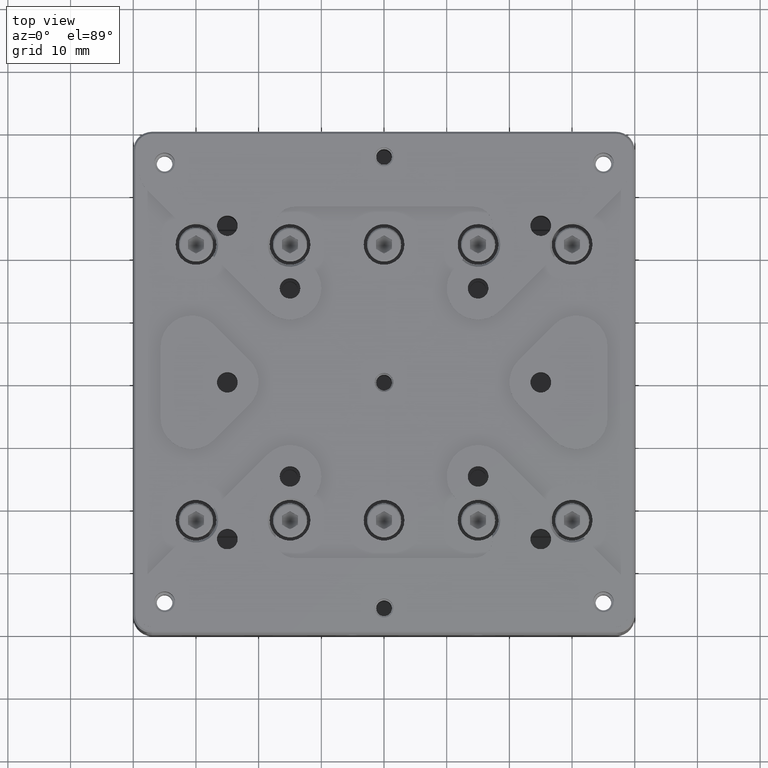
[diagram: clean part render]
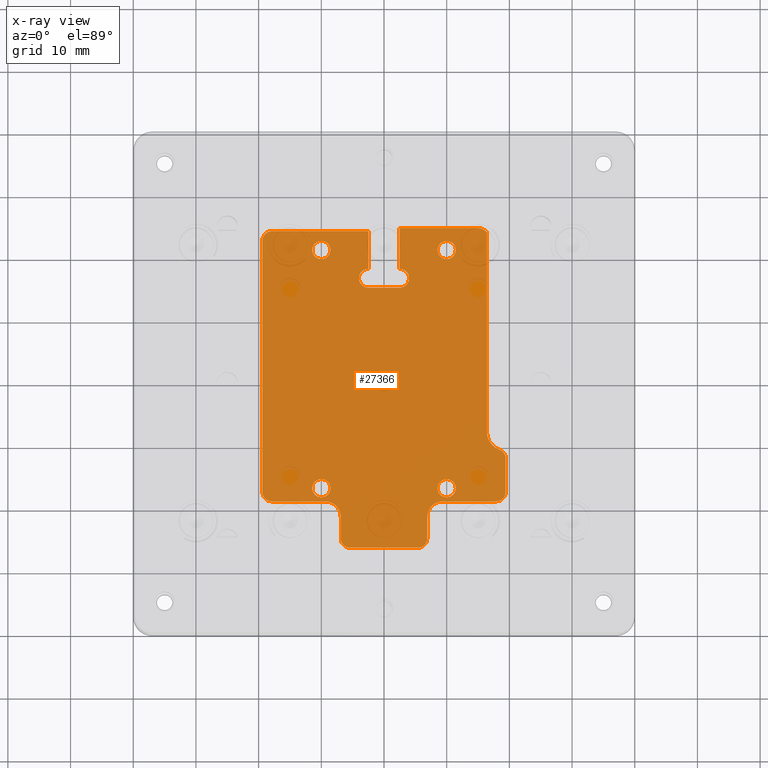
[diagram: x-ray — body ghosted, one internal face saturated and labeled with its STEP entity id]
A machine part, top view, then the same camera in x-ray: the body is ghosted and one INTERNAL B-rep face — a face not visible from any outside direction — is saturated and labeled: STEP entity #27366.
In plain terms, the highlighted planar face has unit normal (0, 0, -1).
Its self-contained STEP definition (entity closure, byte-faithful):
#16 = CARTESIAN_POINT ( 'NONE',  ( -5.400000000000000355, -25.99999999926725280, -8.800000000007910828 ) ) ;
#137 = CIRCLE ( 'NONE', #17075, 1.449999999999999956 ) ;
#143 = ORIENTED_EDGE ( 'NONE', *, *, #4911, .F. ) ;
#257 = VERTEX_POINT ( 'NONE', #14476 ) ;
#405 = CARTESIAN_POINT ( 'NONE',  ( 19.39999999934239838, -17.09999999325500042, -8.799999998785779098 ) ) ;
#794 = VECTOR ( 'NONE', #23783, 1000.000000000000000 ) ;
#882 = AXIS2_PLACEMENT_3D ( 'NONE', #8788, #3944, #26430 ) ;
#949 = FACE_BOUND ( 'NONE', #27039, .T. ) ;
#951 = ORIENTED_EDGE ( 'NONE', *, *, #2645, .T. ) ;
#1061 = VECTOR ( 'NONE', #10046, 1000.000000000000000 ) ;
#1073 = DIRECTION ( 'NONE',  ( -1.000000000000000000, 0.000000000000000000, 0.000000000000000000 ) ) ;
#1105 = VERTEX_POINT ( 'NONE', #18931 ) ;
#1131 = EDGE_CURVE ( 'NONE', #24545, #27905, #9141, .T. ) ;
#1202 = ORIENTED_EDGE ( 'NONE', *, *, #19874, .F. ) ;
#1248 = ORIENTED_EDGE ( 'NONE', *, *, #14221, .F. ) ;
#1253 = CIRCLE ( 'NONE', #10630, 1.449999999999999956 ) ;
#1341 = VERTEX_POINT ( 'NONE', #15688 ) ;
#1468 = AXIS2_PLACEMENT_3D ( 'NONE', #16223, #9461, #16671 ) ;
#1509 = VERTEX_POINT ( 'NONE', #27553 ) ;
#1607 = AXIS2_PLACEMENT_3D ( 'NONE', #23399, #21197, #1073 ) ;
#1663 = CARTESIAN_POINT ( 'NONE',  ( 0.000000000000000000, -18.59999999856999864, -8.800000000000000711 ) ) ;
#1669 = AXIS2_PLACEMENT_3D ( 'NONE', #4443, #13720, #19504 ) ;
#1740 = VERTEX_POINT ( 'NONE', #13140 ) ;
#1854 = ORIENTED_EDGE ( 'NONE', *, *, #28098, .F. ) ;
#1990 = EDGE_CURVE ( 'NONE', #1105, #8143, #25541, .T. ) ;
#2001 = DIRECTION ( 'NONE',  ( 0.000000000000000000, 0.000000000000000000, 1.000000000000000000 ) ) ;
#2112 = VERTEX_POINT ( 'NONE', #21927 ) ;
#2127 = VERTEX_POINT ( 'NONE', #5774 ) ;
#2130 = EDGE_CURVE ( 'NONE', #9591, #257, #26031, .T. ) ;
#2136 = CARTESIAN_POINT ( 'NONE',  ( 10.00000000000000000, -16.50000000000000000, -8.800000000000000711 ) ) ;
#2236 = DIRECTION ( 'NONE',  ( -1.000000000000000000, 0.000000000000000000, 0.000000000000000000 ) ) ;
#2291 = CIRCLE ( 'NONE', #23442, 3.000000000076215922 ) ;
#2514 = CARTESIAN_POINT ( 'NONE',  ( -17.89999999999999858, 23.00000000000000000, -8.799999998700519299 ) ) ;
#2552 = FACE_OUTER_BOUND ( 'NONE', #4009, .T. ) ;
#2645 = EDGE_CURVE ( 'NONE', #14348, #2112, #26730, .T. ) ;
#2782 = EDGE_CURVE ( 'NONE', #257, #9591, #26293, .T. ) ;
#2996 = ORIENTED_EDGE ( 'NONE', *, *, #20129, .F. ) ;
#3034 = EDGE_LOOP ( 'NONE', ( #6653, #23144 ) ) ;
#3944 = DIRECTION ( 'NONE',  ( 0.000000000000000000, 0.000000000000000000, 1.000000000000000000 ) ) ;
#4003 = DIRECTION ( 'NONE',  ( 1.000000000000000000, 0.000000000000000000, 0.000000000000000000 ) ) ;
#4009 = EDGE_LOOP ( 'NONE', ( #1854, #17463, #143, #11939, #19205, #16305, #17220, #18360, #7519, #12597, #23995, #16031, #8256, #8213, #14610, #10104, #2996, #1202, #13531, #22551, #9954, #14824, #1248, #26762, #10898, #951 ) ) ;
#4128 = DIRECTION ( 'NONE',  ( 0.000000000000000000, 0.000000000000000000, 1.000000000000000000 ) ) ;
#4135 = DIRECTION ( 'NONE',  ( 0.000000000000000000, -1.000000000000000000, 0.000000000000000000 ) ) ;
#4145 = DIRECTION ( 'NONE',  ( -1.000000000000000000, 0.000000000000000000, 0.000000000000000000 ) ) ;
#4416 = AXIS2_PLACEMENT_3D ( 'NONE', #26337, #4128, #28266 ) ;
#4443 = CARTESIAN_POINT ( 'NONE',  ( -5.400000000000000355, -24.50000000000000000, -8.800000000007910828 ) ) ;
#4582 = EDGE_CURVE ( 'NONE', #27315, #22946, #7027, .T. ) ;
#4611 = CARTESIAN_POINT ( 'NONE',  ( 10.00000000000000000, 21.50000000000000000, -8.800000000000000711 ) ) ;
#4622 = CARTESIAN_POINT ( 'NONE',  ( -11.44999999999999929, 21.50000000000000000, -8.800000000000000711 ) ) ;
#4910 = FACE_BOUND ( 'NONE', #13716, .T. ) ;
#4911 = EDGE_CURVE ( 'NONE', #20465, #1740, #26769, .T. ) ;
#5049 = PLANE ( 'NONE',  #12834 ) ;
#5255 = CARTESIAN_POINT ( 'NONE',  ( 0.000000000000000000, -18.59999999999999787, -8.800000000000000711 ) ) ;
#5437 = CARTESIAN_POINT ( 'NONE',  ( -17.90000000079999865, -18.59999999928500003, -8.799999999293419251 ) ) ;
#5619 = EDGE_CURVE ( 'NONE', #28741, #12495, #16815, .T. ) ;
#5774 = CARTESIAN_POINT ( 'NONE',  ( 6.899999999361999592, -24.49999999325499900, -8.799999999378679050 ) ) ;
#6018 = CARTESIAN_POINT ( 'NONE',  ( -10.00000000000000000, 21.50000000000000000, -8.800000000000000711 ) ) ;
#6027 = EDGE_CURVE ( 'NONE', #12881, #27760, #19172, .T. ) ;
#6105 = AXIS2_PLACEMENT_3D ( 'NONE', #4611, #11399, #11537 ) ;
#6141 = CARTESIAN_POINT ( 'NONE',  ( 6.900000000027329605, -21.10000000000000142, -8.800000000027331737 ) ) ;
#6489 = AXIS2_PLACEMENT_3D ( 'NONE', #9425, #18386, #26316 ) ;
#6653 = ORIENTED_EDGE ( 'NONE', *, *, #2130, .F. ) ;
#6893 = ORIENTED_EDGE ( 'NONE', *, *, #6027, .F. ) ;
#7027 = LINE ( 'NONE', #8568, #12199 ) ;
#7045 = EDGE_CURVE ( 'NONE', #12495, #21410, #19743, .T. ) ;
#7082 = VERTEX_POINT ( 'NONE', #19317 ) ;
#7104 = ORIENTED_EDGE ( 'NONE', *, *, #1131, .F. ) ;
#7402 = FACE_BOUND ( 'NONE', #3034, .T. ) ;
#7519 = ORIENTED_EDGE ( 'NONE', *, *, #16728, .F. ) ;
#7633 = VERTEX_POINT ( 'NONE', #27201 ) ;
#7696 = EDGE_CURVE ( 'NONE', #7082, #16619, #12810, .T. ) ;
#7725 = CARTESIAN_POINT ( 'NONE',  ( 19.40000000000000213, -7.500000000000000000, -8.799999999967619502 ) ) ;
#7813 = EDGE_CURVE ( 'NONE', #19649, #28040, #19113, .T. ) ;
#8050 = CIRCLE ( 'NONE', #24481, 1.499999998689417691 ) ;
#8085 = DIRECTION ( 'NONE',  ( -1.000000000000000000, 0.000000000000000000, 0.000000000000000000 ) ) ;
#8143 = VERTEX_POINT ( 'NONE', #21130 ) ;
#8213 = ORIENTED_EDGE ( 'NONE', *, *, #16062, .F. ) ;
#8256 = ORIENTED_EDGE ( 'NONE', *, *, #18459, .F. ) ;
#8263 = LINE ( 'NONE', #19009, #1061 ) ;
#8338 = VERTEX_POINT ( 'NONE', #22159 ) ;
#8341 = VECTOR ( 'NONE', #21962, 1000.000000000000000 ) ;
#8446 = CIRCLE ( 'NONE', #22994, 1.449999999999999956 ) ;
#8568 = CARTESIAN_POINT ( 'NONE',  ( 16.40000000000000213, 0.000000000000000000, -8.800000000000000711 ) ) ;
#8593 = LINE ( 'NONE', #22108, #9741 ) ;
#8700 = CIRCLE ( 'NONE', #1669, 1.499999999953613994 ) ;
#8775 = EDGE_CURVE ( 'NONE', #1740, #16624, #26402, .T. ) ;
#8788 = CARTESIAN_POINT ( 'NONE',  ( 9.400000000000000355, -21.10000000000000142, -8.800000000054659210 ) ) ;
#8829 = AXIS2_PLACEMENT_3D ( 'NONE', #14910, #24011, #17119 ) ;
#8842 = DIRECTION ( 'NONE',  ( 0.000000000000000000, 1.000000000000000000, 0.000000000000000000 ) ) ;
#8850 = DIRECTION ( 'NONE',  ( 0.000000000000000000, 0.000000000000000000, 1.000000000000000000 ) ) ;
#9141 = CIRCLE ( 'NONE', #19951, 1.449999999999999956 ) ;
#9425 = CARTESIAN_POINT ( 'NONE',  ( 10.00000000000000000, 21.50000000000000000, -8.800000000000000711 ) ) ;
#9428 = CARTESIAN_POINT ( 'NONE',  ( -2.500000000000000000, 15.50000000000000000, -8.800000000000000711 ) ) ;
#9461 = DIRECTION ( 'NONE',  ( 0.000000000000000000, 0.000000000000000000, 1.000000000000000000 ) ) ;
#9564 = CARTESIAN_POINT ( 'NONE',  ( -2.500000000000000000, 18.50000000000000000, -8.800000000000000711 ) ) ;
#9591 = VERTEX_POINT ( 'NONE', #18036 ) ;
#9741 = VECTOR ( 'NONE', #17274, 1000.000000000000000 ) ;
#9927 = DIRECTION ( 'NONE',  ( 0.000000000000000000, -1.000000000000000000, 0.000000000000000000 ) ) ;
#9954 = ORIENTED_EDGE ( 'NONE', *, *, #17800, .F. ) ;
#10013 = CARTESIAN_POINT ( 'NONE',  ( -2.500000000000000000, 0.000000000000000000, -8.800000000000000711 ) ) ;
#10046 = DIRECTION ( 'NONE',  ( 1.000000000000000000, 0.000000000000000000, 0.000000000000000000 ) ) ;
#10104 = ORIENTED_EDGE ( 'NONE', *, *, #20398, .F. ) ;
#10295 = DIRECTION ( 'NONE',  ( -1.000000000000000000, 0.000000000000000000, 0.000000000000000000 ) ) ;
#10300 = CIRCLE ( 'NONE', #19701, 1.500000000000000000 ) ;
#10433 = ORIENTED_EDGE ( 'NONE', *, *, #27383, .F. ) ;
#10527 = VECTOR ( 'NONE', #27605, 1000.000000000000000 ) ;
#10630 = AXIS2_PLACEMENT_3D ( 'NONE', #6018, #14862, #8085 ) ;
#10898 = ORIENTED_EDGE ( 'NONE', *, *, #19069, .F. ) ;
#10913 = LINE ( 'NONE', #28972, #23673 ) ;
#10920 = DIRECTION ( 'NONE',  ( 1.000000000000000000, 0.000000000000000000, 0.000000000000000000 ) ) ;
#11399 = DIRECTION ( 'NONE',  ( 0.000000000000000000, 0.000000000000000000, 1.000000000000000000 ) ) ;
#11537 = DIRECTION ( 'NONE',  ( -1.000000000000000000, 0.000000000000000000, 0.000000000000000000 ) ) ;
#11598 = EDGE_CURVE ( 'NONE', #19408, #7082, #8263, .T. ) ;
#11940 = VERTEX_POINT ( 'NONE', #5437 ) ;
#11939 = ORIENTED_EDGE ( 'NONE', *, *, #17777, .F. ) ;
#12114 = CIRCLE ( 'NONE', #13518, 2.000000000000000000 ) ;
#12199 = VECTOR ( 'NONE', #4135, 1000.000000000000000 ) ;
#12205 = LINE ( 'NONE', #23521, #24256 ) ;
#12495 = VERTEX_POINT ( 'NONE', #19913 ) ;
#12517 = DIRECTION ( 'NONE',  ( 0.000000000000000000, 0.000000000000000000, 1.000000000000000000 ) ) ;
#12597 = ORIENTED_EDGE ( 'NONE', *, *, #27385, .F. ) ;
#12767 = EDGE_CURVE ( 'NONE', #8338, #26977, #23539, .T. ) ;
#12810 = LINE ( 'NONE', #10013, #20159 ) ;
#12834 = AXIS2_PLACEMENT_3D ( 'NONE', #18727, #14186, #9927 ) ;
#12881 = VERTEX_POINT ( 'NONE', #28119 ) ;
#13085 = CARTESIAN_POINT ( 'NONE',  ( -2.500000000000000000, 17.00000000000000000, -8.800000000000000711 ) ) ;
#13140 = CARTESIAN_POINT ( 'NONE',  ( 4.000000000000000000, 17.00000000000000000, -8.800000000000000711 ) ) ;
#13470 = CARTESIAN_POINT ( 'NONE',  ( 8.550000000000000711, 21.50000000000000000, -8.800000000000000711 ) ) ;
#13518 = AXIS2_PLACEMENT_3D ( 'NONE', #13997, #27526, #2236 ) ;
#13531 = ORIENTED_EDGE ( 'NONE', *, *, #7045, .F. ) ;
#13555 = CIRCLE ( 'NONE', #882, 2.500000000054569682 ) ;
#13556 = DIRECTION ( 'NONE',  ( -1.000000000000000000, 0.000000000000000000, 0.000000000000000000 ) ) ;
#13610 = VECTOR ( 'NONE', #24541, 1000.000000000000000 ) ;
#13716 = EDGE_LOOP ( 'NONE', ( #14849, #20908 ) ) ;
#13720 = DIRECTION ( 'NONE',  ( 0.000000000000000000, 0.000000000000000000, -1.000000000000000000 ) ) ;
#13873 = DIRECTION ( 'NONE',  ( -1.000000000000000000, 0.000000000000000000, 0.000000000000000000 ) ) ;
#13997 = CARTESIAN_POINT ( 'NONE',  ( 14.90000000000000036, 23.00000000000000000, -8.800000000000000711 ) ) ;
#14186 = DIRECTION ( 'NONE',  ( 0.000000000000000000, 0.000000000000000000, -1.000000000000000000 ) ) ;
#14221 = EDGE_CURVE ( 'NONE', #22946, #1105, #2291, .T. ) ;
#14348 = VERTEX_POINT ( 'NONE', #20441 ) ;
#14381 = LINE ( 'NONE', #23334, #794 ) ;
#14476 = CARTESIAN_POINT ( 'NONE',  ( -8.550000000000000711, -16.50000000000000000, -8.800000000000000711 ) ) ;
#14482 = DIRECTION ( 'NONE',  ( 0.000000000000000000, 0.000000000000000000, -1.000000000000000000 ) ) ;
#14516 = VERTEX_POINT ( 'NONE', #9428 ) ;
#14610 = ORIENTED_EDGE ( 'NONE', *, *, #7813, .F. ) ;
#14666 = EDGE_CURVE ( 'NONE', #7633, #27297, #8446, .T. ) ;
#14824 = ORIENTED_EDGE ( 'NONE', *, *, #1990, .F. ) ;
#14849 = ORIENTED_EDGE ( 'NONE', *, *, #16764, .F. ) ;
#14862 = DIRECTION ( 'NONE',  ( 0.000000000000000000, 0.000000000000000000, 1.000000000000000000 ) ) ;
#14910 = CARTESIAN_POINT ( 'NONE',  ( 17.89999999999999858, -17.10000000000000142, -8.799999998757359165 ) ) ;
#14991 = ORIENTED_EDGE ( 'NONE', *, *, #24404, .F. ) ;
#15557 = DIRECTION ( 'NONE',  ( 0.000000000000000000, 0.000000000000000000, 1.000000000000000000 ) ) ;
#15688 = CARTESIAN_POINT ( 'NONE',  ( -19.39999999926219942, -17.10000000000000142, -8.799999999309600085 ) ) ;
#15745 = CARTESIAN_POINT ( 'NONE',  ( 9.400000000000000355, -18.59999999925770098, -8.800000000054659210 ) ) ;
#15946 = CARTESIAN_POINT ( 'NONE',  ( 2.500000000000000000, 15.50000000000000000, -8.800000000000000711 ) ) ;
#16031 = ORIENTED_EDGE ( 'NONE', *, *, #12767, .F. ) ;
#16062 = EDGE_CURVE ( 'NONE', #28040, #1509, #8700, .T. ) ;
#16148 = CARTESIAN_POINT ( 'NONE',  ( -10.00000000000000000, -16.50000000000000000, -8.800000000000000711 ) ) ;
#16223 = CARTESIAN_POINT ( 'NONE',  ( -9.400000000000000355, -21.10000000000000142, -8.800000000054659210 ) ) ;
#16249 = CARTESIAN_POINT ( 'NONE',  ( -17.89999999999999858, -17.10000000000000142, -8.799999998586828909 ) ) ;
#16305 = ORIENTED_EDGE ( 'NONE', *, *, #7696, .F. ) ;
#16437 = AXIS2_PLACEMENT_3D ( 'NONE', #26703, #15557, #18160 ) ;
#16619 = VERTEX_POINT ( 'NONE', #9564 ) ;
#16624 = VERTEX_POINT ( 'NONE', #23075 ) ;
#16671 = DIRECTION ( 'NONE',  ( 1.000000000000000000, 0.000000000000000000, 0.000000000000000000 ) ) ;
#16728 = EDGE_CURVE ( 'NONE', #1341, #17663, #12205, .T. ) ;
#16764 = EDGE_CURVE ( 'NONE', #27297, #7633, #1253, .T. ) ;
#16781 = CARTESIAN_POINT ( 'NONE',  ( 5.400000000797500199, -25.99999999874874845, -8.799999999199929590 ) ) ;
#16815 = CIRCLE ( 'NONE', #8829, 1.499999998684779179 ) ;
#16927 = CARTESIAN_POINT ( 'NONE',  ( 0.000000000000000000, -25.99999999857000077, -8.800000000000000711 ) ) ;
#17075 = AXIS2_PLACEMENT_3D ( 'NONE', #20632, #23148, #18891 ) ;
#17119 = DIRECTION ( 'NONE',  ( -1.000000000000000000, 0.000000000000000000, 0.000000000000000000 ) ) ;
#17220 = ORIENTED_EDGE ( 'NONE', *, *, #11598, .F. ) ;
#17223 = DIRECTION ( 'NONE',  ( 0.000000000000000000, 0.000000000000000000, 1.000000000000000000 ) ) ;
#17274 = DIRECTION ( 'NONE',  ( 0.000000000000000000, -1.000000000000000000, 0.000000000000000000 ) ) ;
#17463 = ORIENTED_EDGE ( 'NONE', *, *, #8775, .F. ) ;
#17663 = VERTEX_POINT ( 'NONE', #27867 ) ;
#17777 = EDGE_CURVE ( 'NONE', #14516, #20465, #19474, .T. ) ;
#17800 = EDGE_CURVE ( 'NONE', #8143, #28741, #8593, .T. ) ;
#18036 = CARTESIAN_POINT ( 'NONE',  ( -11.44999999999999929, -16.50000000000000000, -8.800000000000000711 ) ) ;
#18160 = DIRECTION ( 'NONE',  ( 1.000000000000000000, 0.000000000000000000, 0.000000000000000000 ) ) ;
#18360 = ORIENTED_EDGE ( 'NONE', *, *, #22197, .F. ) ;
#18386 = DIRECTION ( 'NONE',  ( 0.000000000000000000, 0.000000000000000000, 1.000000000000000000 ) ) ;
#18459 = EDGE_CURVE ( 'NONE', #1509, #8338, #14381, .T. ) ;
#18578 = VERTEX_POINT ( 'NONE', #6141 ) ;
#18727 = CARTESIAN_POINT ( 'NONE',  ( 0.000000000000000000, 0.000000000000000000, -8.800000000000000711 ) ) ;
#18749 = DIRECTION ( 'NONE',  ( 0.000000000000000000, -1.000000000000000000, 0.000000000000000000 ) ) ;
#18891 = DIRECTION ( 'NONE',  ( -1.000000000000000000, 0.000000000000000000, 0.000000000000000000 ) ) ;
#18931 = CARTESIAN_POINT ( 'NONE',  ( 18.40000000000589964, -10.32842712483740044, -8.799999999973769249 ) ) ;
#19009 = CARTESIAN_POINT ( 'NONE',  ( 0.000000000000000000, 24.49999999856999722, -8.800000000000000711 ) ) ;
#19055 = LINE ( 'NONE', #21399, #20579 ) ;
#19069 = EDGE_CURVE ( 'NONE', #14348, #27315, #12114, .T. ) ;
#19113 = LINE ( 'NONE', #16927, #21576 ) ;
#19172 = CIRCLE ( 'NONE', #6489, 1.449999999999999956 ) ;
#19205 = ORIENTED_EDGE ( 'NONE', *, *, #23889, .F. ) ;
#19317 = CARTESIAN_POINT ( 'NONE',  ( -2.500000000000000000, 24.49999999856935062, -8.799999999522670535 ) ) ;
#19408 = VERTEX_POINT ( 'NONE', #19585 ) ;
#19474 = LINE ( 'NONE', #28438, #8341 ) ;
#19504 = DIRECTION ( 'NONE',  ( -1.000000000000000000, 0.000000000000000000, 0.000000000000000000 ) ) ;
#19510 = DIRECTION ( 'NONE',  ( -1.000000000000000000, 0.000000000000000000, 0.000000000000000000 ) ) ;
#19585 = CARTESIAN_POINT ( 'NONE',  ( -17.90000000079999865, 24.49999999854444965, -8.799999998643670551 ) ) ;
#19649 = VERTEX_POINT ( 'NONE', #16781 ) ;
#19701 = AXIS2_PLACEMENT_3D ( 'NONE', #13085, #17223, #21910 ) ;
#19743 = LINE ( 'NONE', #1663, #24369 ) ;
#19874 = EDGE_CURVE ( 'NONE', #21410, #18578, #13555, .T. ) ;
#19913 = CARTESIAN_POINT ( 'NONE',  ( 17.89999999999999858, -18.59999999854210273, -8.799999998700519299 ) ) ;
#19951 = AXIS2_PLACEMENT_3D ( 'NONE', #2136, #2001, #19510 ) ;
#20129 = EDGE_CURVE ( 'NONE', #18578, #2127, #19055, .T. ) ;
#20159 = VECTOR ( 'NONE', #25891, 1000.000000000000000 ) ;
#20312 = CIRCLE ( 'NONE', #26899, 1.499999998514248922 ) ;
#20398 = EDGE_CURVE ( 'NONE', #2127, #19649, #27194, .T. ) ;
#20441 = CARTESIAN_POINT ( 'NONE',  ( 14.90000000000000036, 25.00000000000000000, -8.800000000000000711 ) ) ;
#20465 = VERTEX_POINT ( 'NONE', #15946 ) ;
#20481 = DIRECTION ( 'NONE',  ( 0.000000000000000000, 0.000000000000000000, -1.000000000000000000 ) ) ;
#20579 = VECTOR ( 'NONE', #18749, 1000.000000000000000 ) ;
#20632 = CARTESIAN_POINT ( 'NONE',  ( 10.00000000000000000, -16.50000000000000000, -8.800000000000000711 ) ) ;
#20908 = ORIENTED_EDGE ( 'NONE', *, *, #14666, .F. ) ;
#21130 = CARTESIAN_POINT ( 'NONE',  ( 19.40000000003309921, -11.74264068711999975, -8.800000000006150458 ) ) ;
#21197 = DIRECTION ( 'NONE',  ( 0.000000000000000000, 0.000000000000000000, -1.000000000000000000 ) ) ;
#21209 = EDGE_LOOP ( 'NONE', ( #7104, #10433 ) ) ;
#21306 = DIRECTION ( 'NONE',  ( 0.000000000000000000, 1.000000000000000000, 0.000000000000000000 ) ) ;
#21399 = CARTESIAN_POINT ( 'NONE',  ( 6.899999999999999467, 0.000000000000000000, -8.800000000000000711 ) ) ;
#21410 = VERTEX_POINT ( 'NONE', #15745 ) ;
#21576 = VECTOR ( 'NONE', #10295, 1000.000000000000000 ) ;
#21910 = DIRECTION ( 'NONE',  ( 1.000000000000000000, 0.000000000000000000, 0.000000000000000000 ) ) ;
#21927 = CARTESIAN_POINT ( 'NONE',  ( 2.500000000000000000, 25.00000000000000000, -8.800000000000000711 ) ) ;
#21962 = DIRECTION ( 'NONE',  ( 1.000000000000000000, 0.000000000000000000, 0.000000000000000000 ) ) ;
#22108 = CARTESIAN_POINT ( 'NONE',  ( 19.40000000000000213, -14.42132034355999970, -8.800000000000000711 ) ) ;
#22159 = CARTESIAN_POINT ( 'NONE',  ( -6.900000001847139686, -21.09999999339999732, -8.800000002674510213 ) ) ;
#22197 = EDGE_CURVE ( 'NONE', #17663, #19408, #8050, .T. ) ;
#22551 = ORIENTED_EDGE ( 'NONE', *, *, #5619, .F. ) ;
#22853 = CARTESIAN_POINT ( 'NONE',  ( 16.40000000000000213, 24.32287565553230024, -8.800000000000000711 ) ) ;
#22891 = DIRECTION ( 'NONE',  ( 0.000000000000000000, 0.000000000000000000, 1.000000000000000000 ) ) ;
#22946 = VERTEX_POINT ( 'NONE', #28505 ) ;
#22976 = CIRCLE ( 'NONE', #6105, 1.449999999999999956 ) ;
#22993 = DIRECTION ( 'NONE',  ( -1.000000000000000000, 0.000000000000000000, 0.000000000000000000 ) ) ;
#22994 = AXIS2_PLACEMENT_3D ( 'NONE', #23831, #12517, #25741 ) ;
#23075 = CARTESIAN_POINT ( 'NONE',  ( 2.500000000000000000, 18.50000000000000000, -8.800000000000000711 ) ) ;
#23144 = ORIENTED_EDGE ( 'NONE', *, *, #2782, .F. ) ;
#23148 = DIRECTION ( 'NONE',  ( 0.000000000000000000, 0.000000000000000000, 1.000000000000000000 ) ) ;
#23154 = CARTESIAN_POINT ( 'NONE',  ( 11.44999999999999929, -16.50000000000000000, -8.800000000000000711 ) ) ;
#23334 = CARTESIAN_POINT ( 'NONE',  ( -6.899999998565999881, 0.000000000000000000, -8.800000000000000711 ) ) ;
#23399 = CARTESIAN_POINT ( 'NONE',  ( 17.89999999999999858, -11.74264068711999975, -8.799999999979918996 ) ) ;
#23442 = AXIS2_PLACEMENT_3D ( 'NONE', #7725, #24161, #4003 ) ;
#23492 = LINE ( 'NONE', #5255, #10527 ) ;
#23521 = CARTESIAN_POINT ( 'NONE',  ( -19.40000000000000213, 2.949999999999999734, -8.800000000000000711 ) ) ;
#23539 = CIRCLE ( 'NONE', #1468, 2.500000000054569682 ) ;
#23673 = VECTOR ( 'NONE', #8842, 1000.000000000000000 ) ;
#23783 = DIRECTION ( 'NONE',  ( 0.000000000000000000, 1.000000000000000000, 0.000000000000000000 ) ) ;
#23831 = CARTESIAN_POINT ( 'NONE',  ( -10.00000000000000000, 21.50000000000000000, -8.800000000000000711 ) ) ;
#23889 = EDGE_CURVE ( 'NONE', #16619, #14516, #10300, .T. ) ;
#23995 = ORIENTED_EDGE ( 'NONE', *, *, #28859, .F. ) ;
#24011 = DIRECTION ( 'NONE',  ( 0.000000000000000000, 0.000000000000000000, -1.000000000000000000 ) ) ;
#24161 = DIRECTION ( 'NONE',  ( 0.000000000000000000, 0.000000000000000000, 1.000000000000000000 ) ) ;
#24256 = VECTOR ( 'NONE', #21306, 1000.000000000000000 ) ;
#24290 = CARTESIAN_POINT ( 'NONE',  ( 2.500000000000000000, 17.00000000000000000, -8.800000000000000711 ) ) ;
#24369 = VECTOR ( 'NONE', #4145, 1000.000000000000000 ) ;
#24399 = AXIS2_PLACEMENT_3D ( 'NONE', #16148, #22891, #27318 ) ;
#24404 = EDGE_CURVE ( 'NONE', #27760, #12881, #22976, .T. ) ;
#24481 = AXIS2_PLACEMENT_3D ( 'NONE', #2514, #26645, #13556 ) ;
#24541 = DIRECTION ( 'NONE',  ( -1.000000000000000000, 0.000000000000000000, 0.000000000000000000 ) ) ;
#24545 = VERTEX_POINT ( 'NONE', #25784 ) ;
#24679 = CARTESIAN_POINT ( 'NONE',  ( 19.90000000000000213, 25.00000000000000000, -8.800000000000000711 ) ) ;
#25541 = CIRCLE ( 'NONE', #1607, 1.499999999962454922 ) ;
#25691 = CARTESIAN_POINT ( 'NONE',  ( -9.400000000000000355, -18.60000000002734666, -8.800000000027331737 ) ) ;
#25741 = DIRECTION ( 'NONE',  ( -1.000000000000000000, 0.000000000000000000, 0.000000000000000000 ) ) ;
#25784 = CARTESIAN_POINT ( 'NONE',  ( 8.550000000000000711, -16.50000000000000000, -8.800000000000000711 ) ) ;
#25891 = DIRECTION ( 'NONE',  ( 0.000000000000000000, -1.000000000000000000, 0.000000000000000000 ) ) ;
#26031 = CIRCLE ( 'NONE', #4416, 1.449999999999999956 ) ;
#26293 = CIRCLE ( 'NONE', #24399, 1.449999999999999956 ) ;
#26316 = DIRECTION ( 'NONE',  ( -1.000000000000000000, 0.000000000000000000, 0.000000000000000000 ) ) ;
#26337 = CARTESIAN_POINT ( 'NONE',  ( -10.00000000000000000, -16.50000000000000000, -8.800000000000000711 ) ) ;
#26402 = CIRCLE ( 'NONE', #26864, 1.500000000000000000 ) ;
#26430 = DIRECTION ( 'NONE',  ( 1.000000000000000000, 0.000000000000000000, 0.000000000000000000 ) ) ;
#26645 = DIRECTION ( 'NONE',  ( 0.000000000000000000, 0.000000000000000000, -1.000000000000000000 ) ) ;
#26703 = CARTESIAN_POINT ( 'NONE',  ( 2.500000000000000000, 17.00000000000000000, -8.800000000000000711 ) ) ;
#26730 = LINE ( 'NONE', #24679, #13610 ) ;
#26762 = ORIENTED_EDGE ( 'NONE', *, *, #4582, .F. ) ;
#26769 = CIRCLE ( 'NONE', #16437, 1.500000000000000000 ) ;
#26827 = CARTESIAN_POINT ( 'NONE',  ( 5.400000000000000355, -24.50000000000000000, -8.799999998757359165 ) ) ;
#26864 = AXIS2_PLACEMENT_3D ( 'NONE', #24290, #8850, #10920 ) ;
#26899 = AXIS2_PLACEMENT_3D ( 'NONE', #16249, #14482, #22993 ) ;
#26977 = VERTEX_POINT ( 'NONE', #25691 ) ;
#27039 = EDGE_LOOP ( 'NONE', ( #14991, #6893 ) ) ;
#27194 = CIRCLE ( 'NONE', #27656, 1.499999998646216248 ) ;
#27201 = CARTESIAN_POINT ( 'NONE',  ( -8.550000000000000711, 21.50000000000000000, -8.800000000000000711 ) ) ;
#27271 = FACE_BOUND ( 'NONE', #21209, .T. ) ;
#27297 = VERTEX_POINT ( 'NONE', #4622 ) ;
#27315 = VERTEX_POINT ( 'NONE', #22853 ) ;
#27318 = DIRECTION ( 'NONE',  ( -1.000000000000000000, 0.000000000000000000, 0.000000000000000000 ) ) ;
#27366 = ADVANCED_FACE ( 'NONE', ( #2552, #27271, #4910, #7402, #949 ), #5049, .F. ) ;
#27383 = EDGE_CURVE ( 'NONE', #27905, #24545, #137, .T. ) ;
#27385 = EDGE_CURVE ( 'NONE', #11940, #1341, #20312, .T. ) ;
#27526 = DIRECTION ( 'NONE',  ( 0.000000000000000000, 0.000000000000000000, -1.000000000000000000 ) ) ;
#27553 = CARTESIAN_POINT ( 'NONE',  ( -6.899999999286960062, -24.50000000080000007, -8.800000000007910828 ) ) ;
#27605 = DIRECTION ( 'NONE',  ( -1.000000000000000000, 0.000000000000000000, 0.000000000000000000 ) ) ;
#27656 = AXIS2_PLACEMENT_3D ( 'NONE', #26827, #20481, #13873 ) ;
#27760 = VERTEX_POINT ( 'NONE', #13470 ) ;
#27867 = CARTESIAN_POINT ( 'NONE',  ( -19.39999999934469699, 22.99999999325499900, -8.799999998700519299 ) ) ;
#27905 = VERTEX_POINT ( 'NONE', #23154 ) ;
#28040 = VERTEX_POINT ( 'NONE', #16 ) ;
#28098 = EDGE_CURVE ( 'NONE', #16624, #2112, #10913, .T. ) ;
#28119 = CARTESIAN_POINT ( 'NONE',  ( 11.44999999999999929, 21.50000000000000000, -8.800000000000000711 ) ) ;
#28266 = DIRECTION ( 'NONE',  ( -1.000000000000000000, 0.000000000000000000, 0.000000000000000000 ) ) ;
#28438 = CARTESIAN_POINT ( 'NONE',  ( 0.000000000000000000, 15.50000000000000000, -8.800000000000000711 ) ) ;
#28505 = CARTESIAN_POINT ( 'NONE',  ( 16.39999999997865032, -7.500000000000000000, -8.799999999996050093 ) ) ;
#28741 = VERTEX_POINT ( 'NONE', #405 ) ;
#28859 = EDGE_CURVE ( 'NONE', #26977, #11940, #23492, .T. ) ;
#28972 = CARTESIAN_POINT ( 'NONE',  ( 2.500000000000000000, 0.000000000000000000, -8.800000000000000711 ) ) ;